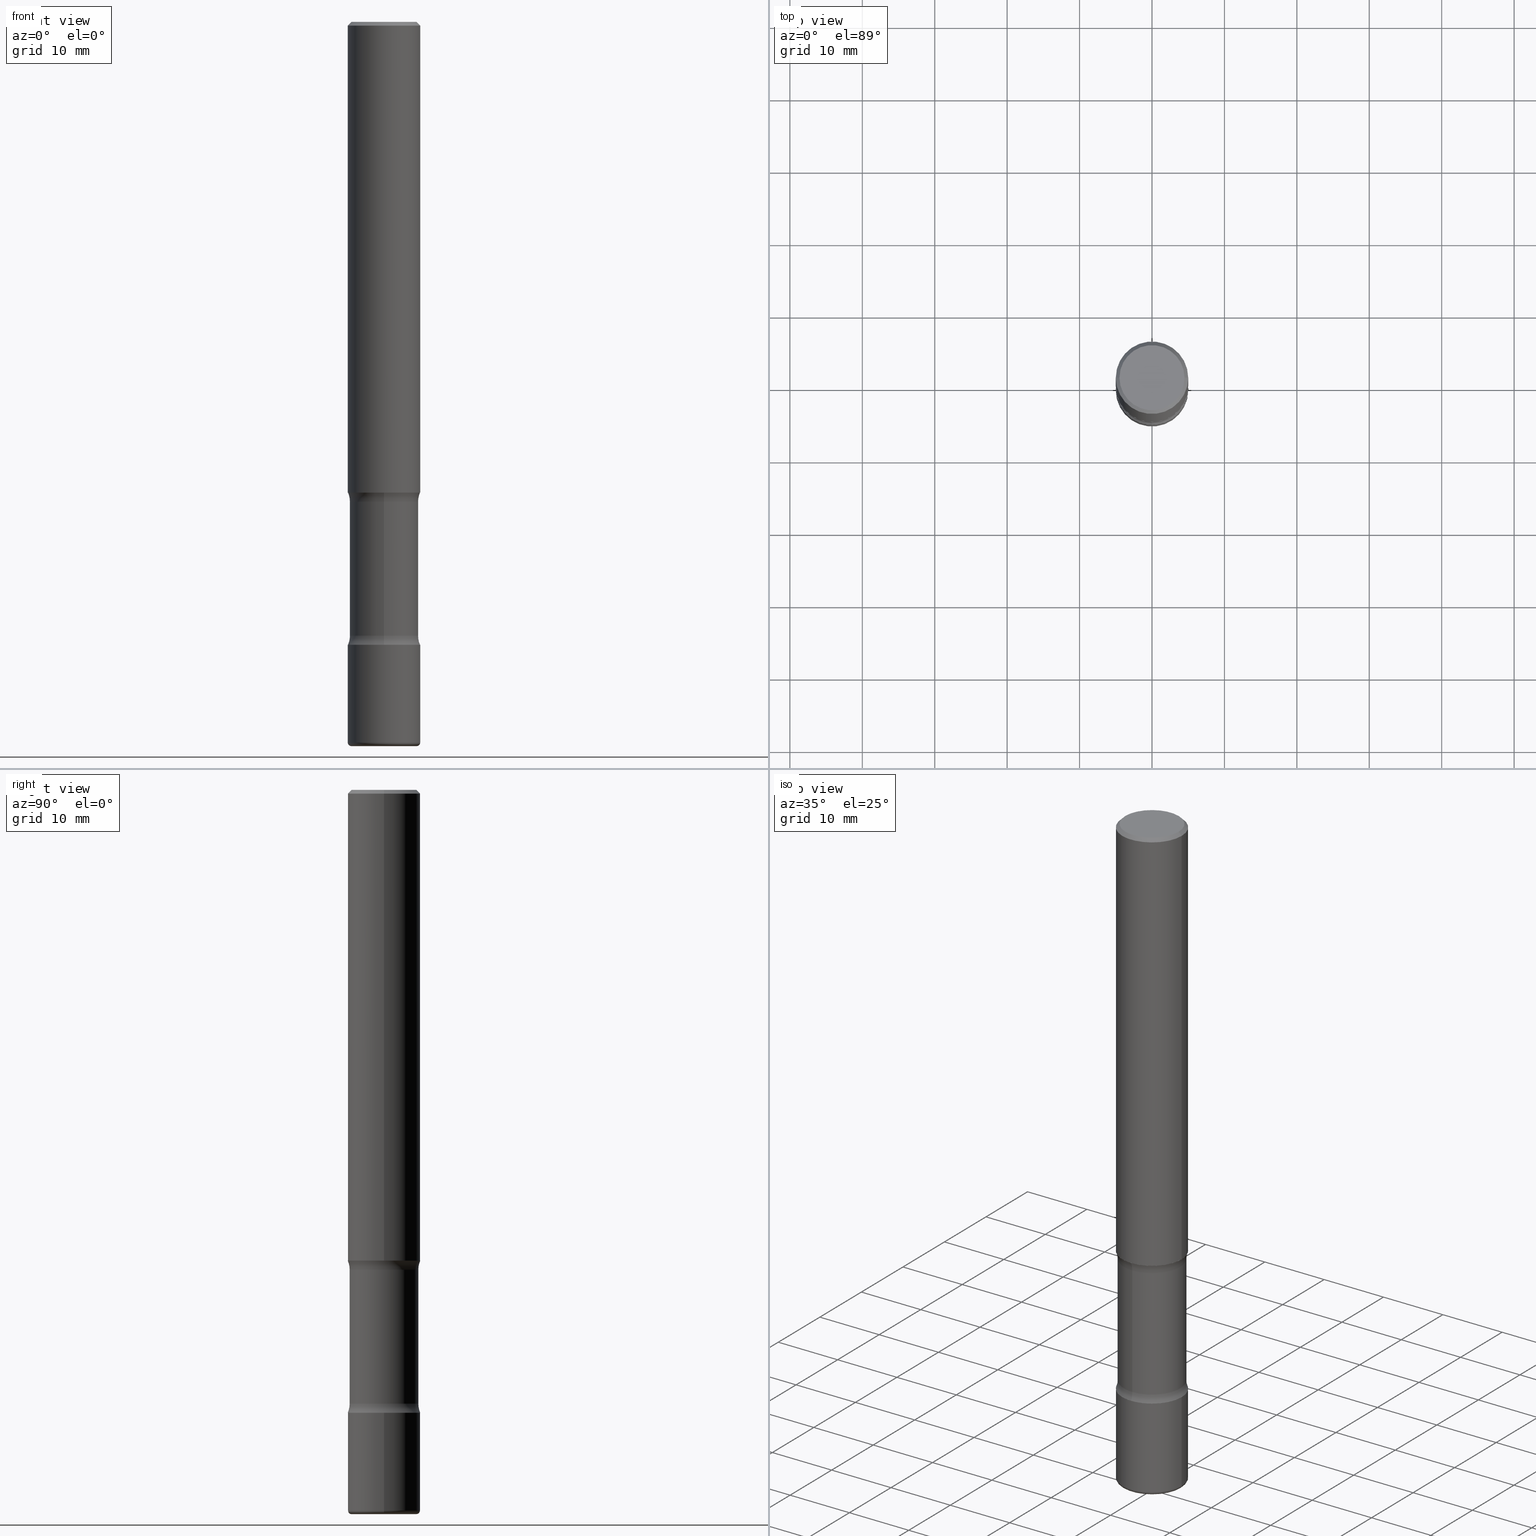
[diagram: canonical four-view strip — front | top / right | iso, engineering-drawing reading convention]
A machine part, canonical four-view strip (front | top / right | iso — engineering-drawing reading convention). The complete STEP part file that produces these views, byte-faithful:
ISO-10303-21;
HEADER;
FILE_DESCRIPTION (( 'STEP AP203' ),
    '1' );
FILE_NAME ('44778.STEP',
    '2024-03-02T03:09:33',
    ( '' ),
    ( '' ),
    'SwSTEP 2.0',
    'SolidWorks 2023',
    '' );
FILE_SCHEMA (( 'CONFIG_CONTROL_DESIGN' ));
ENDSEC;

DATA;
#1 = EDGE_CURVE ( 'NONE', #379, #120, #320, .T. ) ;
#2 = AXIS2_PLACEMENT_3D ( 'NONE', #82, #549, #143 ) ;
#3 = DIRECTION ( 'NONE',  ( -0.7071067811865466846, 2.468850131082247989E-15, -0.7071067811865483499 ) ) ;
#4 = EDGE_CURVE ( 'NONE', #239, #316, #139, .T. ) ;
#5 = CIRCLE ( 'NONE', #131, 0.1250000000000000278 ) ;
#6 = AXIS2_PLACEMENT_3D ( 'NONE', #242, #18, #179 ) ;
#7 = ADVANCED_FACE ( 'NONE', ( #218 ), #343, .T. ) ;
#8 = ORIENTED_EDGE ( 'NONE', *, *, #347, .T. ) ;
#9 = DIMENSIONAL_EXPONENTS ( 1.000000000000000000, 0.000000000000000000, 0.000000000000000000, 0.000000000000000000, 0.000000000000000000, 0.000000000000000000, 0.000000000000000000 ) ;
#10 = DIRECTION ( 'NONE',  ( -2.445468806185136597E-29, 3.491481338843145583E-15, 1.000000000000000000 ) ) ;
#11 = ADVANCED_FACE ( 'NONE', ( #455 ), #54, .F. ) ;
#12 = AXIS2_PLACEMENT_3D ( 'NONE', #107, #404, #533 ) ;
#13 = DIRECTION ( 'NONE',  ( 6.982962677686265922E-15, 1.000000000000000000, -3.282229987566573640E-15 ) ) ;
#14 = CARTESIAN_POINT ( 'NONE',  ( 9.627810689950883669E-29, -1.374596203102546341E-14, -3.937000000000000277 ) ) ;
#15 = UNCERTAINTY_MEASURE_WITH_UNIT (LENGTH_MEASURE( 1.000000000000000082E-05 ), #134, 'distance_accuracy_value', 'NONE');
#16 = CARTESIAN_POINT ( 'NONE',  ( -0.1968499999999998307, 1.304766576325677324E-15, -0.02000000000000006981 ) ) ;
#17 = CC_DESIGN_PERSON_AND_ORGANIZATION_ASSIGNMENT ( #182, #340, ( #141 ) ) ;
#18 = DIRECTION ( 'NONE',  ( -2.591588243807108060E-29, 3.282229987566573640E-15, 1.000000000000000000 ) ) ;
#19 = ORIENTED_EDGE ( 'NONE', *, *, #263, .T. ) ;
#20 = VERTEX_POINT ( 'NONE', #460 ) ;
#21 = CARTESIAN_POINT ( 'NONE',  ( 9.627810689950883669E-29, -1.374596203102546341E-14, -3.937000000000000277 ) ) ;
#22 = PLANE ( 'NONE',  #147 ) ;
#23 = VECTOR ( 'NONE', #281, 39.37007874015748143 ) ;
#24 = VERTEX_POINT ( 'NONE', #256 ) ;
#25 = TOROIDAL_SURFACE ( 'NONE', #432, 0.1771500000000001962, 0.01969999999999989468 ) ;
#26 = FACE_OUTER_BOUND ( 'NONE', #367, .T. ) ;
#27 = ORIENTED_EDGE ( 'NONE', *, *, #1, .T. ) ;
#28 = FACE_OUTER_BOUND ( 'NONE', #374, .T. ) ;
#29 = ORIENTED_EDGE ( 'NONE', *, *, #188, .T. ) ;
#30 = EDGE_LOOP ( 'NONE', ( #547, #495, #407, #245 ) ) ;
#31 = APPROVAL_ROLE ( '' ) ;
#32 = EDGE_CURVE ( 'NONE', #24, #126, #135, .T. ) ;
#33 = DIRECTION ( 'NONE',  ( 6.860497997771532351E-15, 1.000000000000000000, 0.000000000000000000 ) ) ;
#34 = DIRECTION ( 'NONE',  ( -2.445468806185136597E-29, 3.491481338843145583E-15, 1.000000000000000000 ) ) ;
#35 = CALENDAR_DATE ( 2024, 1, 3 ) ;
#36 = EDGE_LOOP ( 'NONE', ( #45, #150 ) ) ;
#37 = ORIENTED_EDGE ( 'NONE', *, *, #38, .F. ) ;
#38 = EDGE_CURVE ( 'NONE', #288, #517, #43, .T. ) ;
#39 = DIRECTION ( 'NONE',  ( 2.591588243807108620E-29, -3.282229987566573640E-15, -1.000000000000000000 ) ) ;
#40 =( NAMED_UNIT ( * ) SI_UNIT ( $, .STERADIAN. ) SOLID_ANGLE_UNIT ( ) );
#41 = AXIS2_PLACEMENT_3D ( 'NONE', #164, #314, #234 ) ;
#42 = DIRECTION ( 'NONE',  ( 1.000000000000000000, -6.982962677686266711E-15, 4.876176775795935793E-29 ) ) ;
#43 = LINE ( 'NONE', #175, #518 ) ;
#44 = PERSON_AND_ORGANIZATION ( #473, #237 ) ;
#45 = ORIENTED_EDGE ( 'NONE', *, *, #265, .F. ) ;
#46 = DIRECTION ( 'NONE',  ( 1.000000000000000000, -6.982962677686265922E-15, 4.883557194083112340E-29 ) ) ;
#47 = COORDINATED_UNIVERSAL_TIME_OFFSET ( 5, 0, .BEHIND. ) ;
#48 = CARTESIAN_POINT ( 'NONE',  ( 6.283517401289684484E-29, -9.243970108248332967E-15, -2.608456647682592333 ) ) ;
#49 = AXIS2_PLACEMENT_3D ( 'NONE', #349, #146, #486 ) ;
#50 = DIRECTION ( 'NONE',  ( -2.445468806185136597E-29, 3.491481338843145583E-15, 1.000000000000000000 ) ) ;
#51 = DIRECTION ( 'NONE',  ( 2.445468806185136597E-29, -3.491481338843145583E-15, -1.000000000000000000 ) ) ;
#52 = DIRECTION ( 'NONE',  ( 2.438088387897960049E-29, -3.491481338843145188E-15, -1.000000000000000000 ) ) ;
#53 = DIRECTION ( 'NONE',  ( -2.445468806185136597E-29, 3.491481338843145583E-15, 1.000000000000000000 ) ) ;
#54 = TOROIDAL_SURFACE ( 'NONE', #552, 0.3116500000000000936, 0.1250000000000000278 ) ;
#55 = CIRCLE ( 'NONE', #441, 0.01969999999999989468 ) ;
#56 = EDGE_CURVE ( 'NONE', #65, #446, #127, .T. ) ;
#57 = LOCAL_TIME ( 22, 9, 33.00000000000000000, #253 ) ;
#58 = FACE_OUTER_BOUND ( 'NONE', #405, .T. ) ;
#59 = DIRECTION ( 'NONE',  ( -2.445468806185136597E-29, 3.491481338843145583E-15, 1.000000000000000000 ) ) ;
#60 = EDGE_CURVE ( 'NONE', #24, #410, #276, .T. ) ;
#61 = TOROIDAL_SURFACE ( 'NONE', #217, 0.1771500000000001962, 0.01969999999999989468 ) ;
#62 = DIRECTION ( 'NONE',  ( -2.445468806185136597E-29, 3.491481338843145583E-15, 1.000000000000000000 ) ) ;
#63 = APPROVAL ( #222, 'UNSPECIFIED' ) ;
#64 = CARTESIAN_POINT ( 'NONE',  ( 6.137143124001919052E-29, -9.107709763335080543E-15, -2.559000000000000163 ) ) ;
#65 = VERTEX_POINT ( 'NONE', #94 ) ;
#66 = DIRECTION ( 'NONE',  ( 0.7071067811865466846, -7.319954787623252890E-15, -0.7071067811865483499 ) ) ;
#67 = DIRECTION ( 'NONE',  ( -6.982962677686266711E-15, -1.000000000000000000, 3.491481338843145583E-15 ) ) ;
#68 = DIRECTION ( 'NONE',  ( 2.591588243807108620E-29, -3.282229987566573640E-15, -1.000000000000000000 ) ) ;
#69 = ORIENTED_EDGE ( 'NONE', *, *, #92, .F. ) ;
#70 = ORIENTED_EDGE ( 'NONE', *, *, #228, .T. ) ;
#71 = ORIENTED_EDGE ( 'NONE', *, *, #354, .T. ) ;
#72 = CARTESIAN_POINT ( 'NONE',  ( 0.000000000000000000, 0.000000000000000000, 0.000000000000000000 ) ) ;
#73 = AXIS2_PLACEMENT_3D ( 'NONE', #303, #463, #33 ) ;
#74 = ORIENTED_EDGE ( 'NONE', *, *, #4, .F. ) ;
#75 = FACE_OUTER_BOUND ( 'NONE', #215, .T. ) ;
#76 = AXIS2_PLACEMENT_3D ( 'NONE', #64, #238, #406 ) ;
#77 = APPROVAL_DATE_TIME ( #423, #109 ) ;
#78 = LOCAL_TIME ( 22, 9, 33.00000000000000000, #171 ) ;
#79 = ADVANCED_FACE ( 'NONE', ( #382 ), #383, .F. ) ;
#80 = ORIENTED_EDGE ( 'NONE', *, *, #317, .T. ) ;
#81 = CALENDAR_DATE ( 2024, 1, 3 ) ;
#82 = CARTESIAN_POINT ( 'NONE',  ( 2.176240318500987949E-15, 0.3116499999999908788, -2.608456647682593665 ) ) ;
#83 = DIRECTION ( 'NONE',  ( 0.000000000000000000, 0.000000000000000000, 1.000000000000000000 ) ) ;
#84 = VERTEX_POINT ( 'NONE', #417 ) ;
#85 = PRODUCT_DEFINITION_SHAPE ( 'NONE', 'NONE',  #560 ) ;
#86 = CARTESIAN_POINT ( 'NONE',  ( -0.1968500000000001082, -3.103561811094476227E-15, -2.559000000000000163 ) ) ;
#87 = CARTESIAN_POINT ( 'NONE',  ( 0.000000000000000000, 0.000000000000000000, 0.000000000000000000 ) ) ;
#88 = DIRECTION ( 'NONE',  ( 1.000000000000000000, 0.000000000000000000, 0.000000000000000000 ) ) ;
#89 = AXIS2_PLACEMENT_3D ( 'NONE', #133, #386, #501 ) ;
#90 = TOROIDAL_SURFACE ( 'NONE', #116, 0.3116500000000000936, 0.1250000000000000278 ) ;
#91 = APPROVAL_PERSON_ORGANIZATION ( #449, #536, #31 ) ;
#92 = EDGE_CURVE ( 'NONE', #523, #517, #395, .T. ) ;
#93 = PERSON_AND_ORGANIZATION ( #473, #237 ) ;
#94 = CARTESIAN_POINT ( 'NONE',  ( 1.303369983790204808E-15, 0.1866499999999908233, -2.608456647682592777 ) ) ;
#95 = VECTOR ( 'NONE', #453, 39.37007874015748143 ) ;
#96 = DIRECTION ( 'NONE',  ( 1.000000000000000000, -6.982962677686266711E-15, 4.876176775795935793E-29 ) ) ;
#97 = AXIS2_PLACEMENT_3D ( 'NONE', #21, #401, #195 ) ;
#98 = LOCAL_TIME ( 22, 9, 33.00000000000000000, #294 ) ;
#99 = DIRECTION ( 'NONE',  ( 2.438088387897960049E-29, -3.491481338843145188E-15, -1.000000000000000000 ) ) ;
#100 = DIRECTION ( 'NONE',  ( -1.000000000000000000, 6.982962677686266711E-15, 0.000000000000000000 ) ) ;
#101 = DIRECTION ( 'NONE',  ( -6.982962677686265133E-15, -1.000000000000000000, 0.000000000000000000 ) ) ;
#102 = EDGE_CURVE ( 'NONE', #65, #120, #393, .T. ) ;
#103 = AXIS2_PLACEMENT_3D ( 'NONE', #170, #62, #482 ) ;
#104 = PLANE ( 'NONE',  #529 ) ;
#105 = EDGE_CURVE ( 'NONE', #517, #523, #152, .T. ) ;
#106 = ORIENTED_EDGE ( 'NONE', *, *, #317, .F. ) ;
#107 = CARTESIAN_POINT ( 'NONE',  ( 0.000000000000000000, 0.000000000000000000, 0.000000000000000000 ) ) ;
#108 = FACE_OUTER_BOUND ( 'NONE', #543, .T. ) ;
#109 = APPROVAL ( #136, 'UNSPECIFIED' ) ;
#110 = LINE ( 'NONE', #443, #431 ) ;
#111 = ORIENTED_EDGE ( 'NONE', *, *, #32, .T. ) ;
#112 = DIRECTION ( 'NONE',  ( 2.591588243807108060E-29, -3.282229987566573640E-15, -1.000000000000000000 ) ) ;
#113 = DIRECTION ( 'NONE',  ( 6.982962677686266711E-15, 1.000000000000000000, -2.927241354046893093E-15 ) ) ;
#114 = CARTESIAN_POINT ( 'NONE',  ( 9.627810689950883669E-29, -1.374596203102546341E-14, -3.937000000000000277 ) ) ;
#115 = VECTOR ( 'NONE', #469, 39.37007874015748143 ) ;
#116 = AXIS2_PLACEMENT_3D ( 'NONE', #48, #346, #434 ) ;
#117 = DIRECTION ( 'NONE',  ( 6.982962677686266711E-15, 1.000000000000000000, -2.927241354046892699E-15 ) ) ;
#118 = APPROVAL_PERSON_ORGANIZATION ( #492, #109, #558 ) ;
#119 = EDGE_CURVE ( 'NONE', #239, #194, #462, .T. ) ;
#120 = VERTEX_POINT ( 'NONE', #348 ) ;
#121 = CARTESIAN_POINT ( 'NONE',  ( 8.279868283981634472E-29, -1.182145751705512057E-14, -3.385799999999999699 ) ) ;
#122 = VERTEX_POINT ( 'NONE', #16 ) ;
#123 = EDGE_LOOP ( 'NONE', ( #74, #209 ) ) ;
#124 = EDGE_CURVE ( 'NONE', #527, #20, #269, .T. ) ;
#125 = DATE_TIME_ROLE ( 'classification_date' ) ;
#126 = VERTEX_POINT ( 'NONE', #358 ) ;
#127 = CIRCLE ( 'NONE', #2, 0.1250000000000000278 ) ;
#128 = CYLINDRICAL_SURFACE ( 'NONE', #255, 0.1866500000000000381 ) ;
#129 = AXIS2_PLACEMENT_3D ( 'NONE', #513, #296, #425 ) ;
#130 = ORIENTED_EDGE ( 'NONE', *, *, #302, .F. ) ;
#131 = AXIS2_PLACEMENT_3D ( 'NONE', #400, #266, #357 ) ;
#132 = PERSON_AND_ORGANIZATION ( #473, #237 ) ;
#133 = CARTESIAN_POINT ( 'NONE',  ( 6.257954675027765161E-29, -8.934700746099610252E-15, -2.559000000000000163 ) ) ;
#134 =( CONVERSION_BASED_UNIT ( 'INCH', #328 ) LENGTH_UNIT ( ) NAMED_UNIT ( #9 ) );
#135 = LINE ( 'NONE', #424, #95 ) ;
#136 = APPROVAL_STATUS ( 'not_yet_approved' ) ;
#137 = ADVANCED_FACE ( 'NONE', ( #477 ), #532, .T. ) ;
#138 = CARTESIAN_POINT ( 'NONE',  ( 9.708351723968114409E-29, -1.363062268620181866E-14, -3.937000000000000277 ) ) ;
#139 = CIRCLE ( 'NONE', #89, 0.1968500000000001082 ) ;
#140 = AXIS2_PLACEMENT_3D ( 'NONE', #437, #59, #199 ) ;
#141 = PRODUCT_DEFINITION_FORMATION_WITH_SPECIFIED_SOURCE ( 'ANY', '', #230, .NOT_KNOWN. ) ;
#142 = CARTESIAN_POINT ( 'NONE',  ( 4.890937612370289799E-31, -6.982962677686315028E-17, -0.02000000000000006981 ) ) ;
#143 = DIRECTION ( 'NONE',  ( -6.982962677686267499E-15, -1.000000000000000000, 0.000000000000000000 ) ) ;
#144 = APPLICATION_CONTEXT ( 'configuration controlled 3d designs of mechanical parts and assemblies' ) ;
#145 = DIRECTION ( 'NONE',  ( 1.000000000000000000, -6.982962677686265133E-15, 0.000000000000000000 ) ) ;
#146 = DIRECTION ( 'NONE',  ( -2.445468806185136597E-29, 3.491481338843145583E-15, 1.000000000000000000 ) ) ;
#147 = AXIS2_PLACEMENT_3D ( 'NONE', #274, #439, #261 ) ;
#148 = EDGE_CURVE ( 'NONE', #316, #239, #497, .T. ) ;
#149 = CARTESIAN_POINT ( 'NONE',  ( 0.000000000000000000, 0.000000000000000000, 0.000000000000000000 ) ) ;
#150 = ORIENTED_EDGE ( 'NONE', *, *, #124, .F. ) ;
#151 = ORIENTED_EDGE ( 'NONE', *, *, #102, .T. ) ;
#152 = CIRCLE ( 'NONE', #380, 0.1968500000000001082 ) ;
#153 = CIRCLE ( 'NONE', #140, 0.1968500000000001915 ) ;
#154 = ORIENTED_EDGE ( 'NONE', *, *, #494, .F. ) ;
#155 = CC_DESIGN_PERSON_AND_ORGANIZATION_ASSIGNMENT ( #507, #225, ( #230 ) ) ;
#156 = ORIENTED_EDGE ( 'NONE', *, *, #228, .F. ) ;
#157 = DIRECTION ( 'NONE',  ( -2.445468806185136597E-29, 3.491481338843145583E-15, 1.000000000000000000 ) ) ;
#158 = VERTEX_POINT ( 'NONE', #402 ) ;
#159 = DIRECTION ( 'NONE',  ( 1.000000000000000000, -6.982962677686272233E-15, 0.000000000000000000 ) ) ;
#160 = CIRCLE ( 'NONE', #458, 0.1968500000000001082 ) ;
#161 = EDGE_LOOP ( 'NONE', ( #37, #398, #537, #323 ) ) ;
#162 = ORIENTED_EDGE ( 'NONE', *, *, #509, .F. ) ;
#163 = ORIENTED_EDGE ( 'NONE', *, *, #246, .T. ) ;
#164 = CARTESIAN_POINT ( 'NONE',  ( 6.265314390714234203E-29, -9.270037855443396476E-15, -2.608456647682592333 ) ) ;
#165 = CARTESIAN_POINT ( 'NONE',  ( 0.000000000000000000, 0.000000000000000000, 0.000000000000000000 ) ) ;
#166 = ORIENTED_EDGE ( 'NONE', *, *, #119, .F. ) ;
#167 = DIRECTION ( 'NONE',  ( 6.982962677686265922E-15, 1.000000000000000000, -3.282229987566573640E-15 ) ) ;
#168 = APPLICATION_CONTEXT ( 'configuration controlled 3d designs of mechanical parts and assemblies' ) ;
#169 = EDGE_LOOP ( 'NONE', ( #162, #476, #304, #293 ) ) ;
#170 = CARTESIAN_POINT ( 'NONE',  ( -1.043851414335219820E-46, 1.490343170380447200E-32, 4.268512490100411279E-18 ) ) ;
#171 = COORDINATED_UNIVERSAL_TIME_OFFSET ( 5, 0, .BEHIND. ) ;
#172 = EDGE_LOOP ( 'NONE', ( #373, #111, #324, #205 ) ) ;
#173 = FACE_OUTER_BOUND ( 'NONE', #544, .T. ) ;
#174 = CIRCLE ( 'NONE', #231, 0.1771500000000001962 ) ;
#175 = CARTESIAN_POINT ( 'NONE',  ( -0.1968500000000001360, 1.398703375343758182E-15, -9.682923725166790684E-30 ) ) ;
#176 = AXIS2_PLACEMENT_3D ( 'NONE', #490, #213, #414 ) ;
#177 = DATE_AND_TIME ( #247, #78 ) ;
#178 = MANIFOLD_SOLID_BREP ( 'Body-Move/Copy2[4]', #207 ) ;
#179 = DIRECTION ( 'NONE',  ( -6.982962677686265922E-15, -1.000000000000000000, 3.282229987566573640E-15 ) ) ;
#180 = APPLICATION_PROTOCOL_DEFINITION ( 'international standard', 'config_control_design', 1994, #144 ) ;
#181 = CARTESIAN_POINT ( 'NONE',  ( 6.257954675027765161E-29, -8.934700746099610252E-15, -2.559000000000000163 ) ) ;
#182 = PERSON_AND_ORGANIZATION ( #473, #237 ) ;
#183 = CARTESIAN_POINT ( 'NONE',  ( -0.1768499999999998129, 1.269851762937246267E-15, 4.268512490091652920E-18 ) ) ;
#184 = CLOSED_SHELL ( 'NONE', ( #534, #337, #557, #457, #310, #267 ) ) ;
#185 = CIRCLE ( 'NONE', #313, 0.1968500000000001915 ) ;
#186 = EDGE_CURVE ( 'NONE', #20, #158, #299, .T. ) ;
#187 = CC_DESIGN_APPROVAL ( #63, ( #141 ) ) ;
#188 = EDGE_CURVE ( 'NONE', #158, #288, #153, .T. ) ;
#189 = ADVANCED_FACE ( 'NONE', ( #108 ), #22, .F. ) ;
#190 = DIRECTION ( 'NONE',  ( 6.982962677686265922E-15, 1.000000000000000000, -2.775563112689115117E-15 ) ) ;
#191 = ADVANCED_FACE ( 'NONE', ( #298 ), #226, .T. ) ;
#192 = AXIS2_PLACEMENT_3D ( 'NONE', #327, #240, #290 ) ;
#193 = CARTESIAN_POINT ( 'NONE',  ( 2.176240318501006882E-15, 0.3116499999999883808, -3.336343352317409305 ) ) ;
#194 = VERTEX_POINT ( 'NONE', #372 ) ;
#195 = DIRECTION ( 'NONE',  ( 1.000000000000000000, -6.982962677686265133E-15, 0.000000000000000000 ) ) ;
#196 = FACE_OUTER_BOUND ( 'NONE', #525, .T. ) ;
#197 = CIRCLE ( 'NONE', #129, 0.1968500000000002748 ) ;
#198 = APPROVAL_PERSON_ORGANIZATION ( #44, #63, #384 ) ;
#199 = DIRECTION ( 'NONE',  ( 1.000000000000000000, -6.982962677686272233E-15, 0.000000000000000000 ) ) ;
#200 = AXIS2_PLACEMENT_3D ( 'NONE', #14, #99, #220 ) ;
#201 = ORIENTED_EDGE ( 'NONE', *, *, #263, .F. ) ;
#202 = PLANE ( 'NONE',  #519 ) ;
#203 = CARTESIAN_POINT ( 'NONE',  ( 9.708351723968114409E-29, -1.363062268620181866E-14, -3.937000000000000277 ) ) ;
#204 = ORIENTED_EDGE ( 'NONE', *, *, #60, .F. ) ;
#205 = ORIENTED_EDGE ( 'NONE', *, *, #102, .F. ) ;
#206 = ORIENTED_EDGE ( 'NONE', *, *, #302, .T. ) ;
#207 = CLOSED_SHELL ( 'NONE', ( #7, #235, #364, #212, #478, #531, #11, #271 ) ) ;
#208 = AXIS2_PLACEMENT_3D ( 'NONE', #72, #464, #42 ) ;
#209 = ORIENTED_EDGE ( 'NONE', *, *, #148, .F. ) ;
#210 = CARTESIAN_POINT ( 'NONE',  ( 0.1968500000000001082, -1.030929694920215344E-14, -2.559000000000000163 ) ) ;
#211 = ORIENTED_EDGE ( 'NONE', *, *, #1, .F. ) ;
#212 = ADVANCED_FACE ( 'NONE', ( #541 ), #90, .F. ) ;
#213 = DIRECTION ( 'NONE',  ( 2.591588243807108620E-29, -3.282229987566573640E-15, -1.000000000000000000 ) ) ;
#214 = CARTESIAN_POINT ( 'NONE',  ( 8.279868283981634472E-29, -1.182145751705512057E-14, -3.385799999999999699 ) ) ;
#215 = EDGE_LOOP ( 'NONE', ( #130, #312, #442, #504 ) ) ;
#216 = DIRECTION ( 'NONE',  ( 6.982962677686266711E-15, 1.000000000000000000, -2.927241354046892304E-15 ) ) ;
#217 = AXIS2_PLACEMENT_3D ( 'NONE', #489, #526, #232 ) ;
#218 = FACE_OUTER_BOUND ( 'NONE', #172, .T. ) ;
#219 = CONICAL_SURFACE ( 'NONE', #459, 0.1968499999999998307, 0.7853981633974471688 ) ;
#220 = DIRECTION ( 'NONE',  ( -1.000000000000000000, 6.982962677686265922E-15, -4.876176775795935793E-29 ) ) ;
#221 = DIRECTION ( 'NONE',  ( -2.445468806185136877E-29, 3.491481338843145188E-15, 1.000000000000000000 ) ) ;
#222 = APPROVAL_STATUS ( 'not_yet_approved' ) ;
#223 = DIRECTION ( 'NONE',  ( 1.000000000000000000, -6.982962677686266711E-15, 4.876176775795935793E-29 ) ) ;
#224 = CARTESIAN_POINT ( 'NONE',  ( 8.158923594815368929E-29, -1.164878055458961151E-14, -3.336343352317407973 ) ) ;
#225 = PERSON_AND_ORGANIZATION_ROLE ( 'design_owner' ) ;
#226 = CYLINDRICAL_SURFACE ( 'NONE', #403, 0.1968499999999999694 ) ;
#227 = VECTOR ( 'NONE', #480, 39.37007874015748143 ) ;
#228 = EDGE_CURVE ( 'NONE', #379, #554, #451, .T. ) ;
#229 = CC_DESIGN_PERSON_AND_ORGANIZATION_ASSIGNMENT ( #456, #258, ( #560 ) ) ;
#230 = PRODUCT ( '44778', '44778', '', ( #338 ) ) ;
#231 = AXIS2_PLACEMENT_3D ( 'NONE', #114, #10, #356 ) ;
#232 = DIRECTION ( 'NONE',  ( 1.000000000000000000, -6.982962677686265922E-15, 4.883557194083112340E-29 ) ) ;
#233 =( LENGTH_UNIT ( ) NAMED_UNIT ( * ) SI_UNIT ( $, .METRE. ) );
#234 = DIRECTION ( 'NONE',  ( 6.982962677686266711E-15, 1.000000000000000000, -2.927241354046892304E-15 ) ) ;
#235 = ADVANCED_FACE ( 'NONE', ( #388 ), #243, .F. ) ;
#236 = TOROIDAL_SURFACE ( 'NONE', #370, 0.3116500000000000936, 0.1250000000000000278 ) ;
#237 = ORGANIZATION ( 'UNSPECIFIED', 'UNSPECIFIED', '' ) ;
#238 = DIRECTION ( 'NONE',  ( 2.591588243807108620E-29, -3.282229987566573640E-15, -1.000000000000000000 ) ) ;
#239 = VERTEX_POINT ( 'NONE', #210 ) ;
#240 = DIRECTION ( 'NONE',  ( 2.591588243807108620E-29, -3.282229987566573640E-15, -1.000000000000000000 ) ) ;
#241 = CC_DESIGN_DATE_AND_TIME_ASSIGNMENT ( #387, #125, ( #321 ) ) ;
#242 = CARTESIAN_POINT ( 'NONE',  ( 8.279868283981634472E-29, -1.182145751705512057E-14, -3.385799999999999699 ) ) ;
#243 = TOROIDAL_SURFACE ( 'NONE', #396, 0.3116500000000000936, 0.1250000000000000278 ) ;
#244 = CIRCLE ( 'NONE', #345, 0.1768499999999998129 ) ;
#245 = ORIENTED_EDGE ( 'NONE', *, *, #306, .F. ) ;
#246 = EDGE_CURVE ( 'NONE', #286, #84, #381, .T. ) ;
#247 = CALENDAR_DATE ( 2024, 1, 3 ) ;
#248 = ORIENTED_EDGE ( 'NONE', *, *, #515, .T. ) ;
#249 = DIRECTION ( 'NONE',  ( 1.000000000000000000, -6.982962677686265922E-15, 4.876176775795935793E-29 ) ) ;
#250 = EDGE_CURVE ( 'NONE', #158, #523, #550, .T. ) ;
#251 = CARTESIAN_POINT ( 'NONE',  ( 8.151697017269320442E-29, -1.165912942494680306E-14, -3.336343352317407973 ) ) ;
#252 = DIRECTION ( 'NONE',  ( 2.591588243807108620E-29, -3.282229987566573640E-15, -1.000000000000000000 ) ) ;
#253 = COORDINATED_UNIVERSAL_TIME_OFFSET ( 5, 0, .BEHIND. ) ;
#254 = ORIENTED_EDGE ( 'NONE', *, *, #188, .F. ) ;
#255 = AXIS2_PLACEMENT_3D ( 'NONE', #203, #68, #117 ) ;
#256 = CARTESIAN_POINT ( 'NONE',  ( -1.315500491072630234E-15, -0.1866500000000093362, -2.608456647682591889 ) ) ;
#257 = LOCAL_TIME ( 22, 9, 33.00000000000000000, #419 ) ;
#258 = PERSON_AND_ORGANIZATION_ROLE ( 'creator' ) ;
#259 = EDGE_CURVE ( 'NONE', #84, #194, #110, .T. ) ;
#260 = CARTESIAN_POINT ( 'NONE',  ( 0.1968500000000001082, -1.319605372015766376E-14, -3.385799999999999699 ) ) ;
#261 = DIRECTION ( 'NONE',  ( -1.000000000000000000, 6.982962677686265922E-15, -4.876176775795935793E-29 ) ) ;
#262 = DIRECTION ( 'NONE',  ( -2.438088387897960049E-29, 3.491481338843145188E-15, 1.000000000000000000 ) ) ;
#263 = EDGE_CURVE ( 'NONE', #554, #379, #160, .T. ) ;
#264 = AXIS2_PLACEMENT_3D ( 'NONE', #251, #421, #113 ) ;
#265 = EDGE_CURVE ( 'NONE', #20, #527, #174, .T. ) ;
#266 = DIRECTION ( 'NONE',  ( 1.000000000000000000, -6.860497997771530774E-15, 4.843361469599724329E-29 ) ) ;
#267 = ADVANCED_FACE ( 'NONE', ( #311 ), #104, .F. ) ;
#268 = AXIS2_PLACEMENT_3D ( 'NONE', #214, #53, #145 ) ;
#269 = CIRCLE ( 'NONE', #97, 0.1771500000000001962 ) ;
#270 = CC_DESIGN_APPROVAL ( #536, ( #321 ) ) ;
#271 = ADVANCED_FACE ( 'NONE', ( #26 ), #128, .T. ) ;
#272 = ORIENTED_EDGE ( 'NONE', *, *, #38, .T. ) ;
#273 = EDGE_CURVE ( 'NONE', #286, #122, #390, .T. ) ;
#274 = CARTESIAN_POINT ( 'NONE',  ( 1.234936949548814815E-15, 0.1768499999999998129, -6.153342185293594620E-16 ) ) ;
#275 = ORIENTED_EDGE ( 'NONE', *, *, #392, .F. ) ;
#276 = CIRCLE ( 'NONE', #73, 0.1250000000000000278 ) ;
#277 = CIRCLE ( 'NONE', #41, 0.1866500000000000659 ) ;
#278 = AXIS2_PLACEMENT_3D ( 'NONE', #149, #465, #96 ) ;
#279 = DIRECTION ( 'NONE',  ( 1.000000000000000000, -6.982962677686266711E-15, 4.875932113059883053E-29 ) ) ;
#280 = CARTESIAN_POINT ( 'NONE',  ( 1.374596203102604520E-15, 0.1968499999999911709, -2.559000000000000608 ) ) ;
#281 = DIRECTION ( 'NONE',  ( 2.591588243807108620E-29, -3.282229987566573640E-15, -1.000000000000000000 ) ) ;
#282 = EDGE_LOOP ( 'NONE', ( #275, #375, #481, #540 ) ) ;
#283 = CC_DESIGN_PERSON_AND_ORGANIZATION_ASSIGNMENT ( #132, #508, ( #141 ) ) ;
#284 = ORIENTED_EDGE ( 'NONE', *, *, #105, .T. ) ;
#285 = CARTESIAN_POINT ( 'NONE',  ( 0.1771500000000001962, -1.491421168700237936E-14, -3.917300000000000448 ) ) ;
#286 = VERTEX_POINT ( 'NONE', #183 ) ;
#287 = DIRECTION ( 'NONE',  ( 1.000000000000000000, -6.982962677686266711E-15, 0.000000000000000000 ) ) ;
#288 = VERTEX_POINT ( 'NONE', #341 ) ;
#289 = DATE_AND_TIME ( #81, #257 ) ;
#290 = DIRECTION ( 'NONE',  ( 6.982962677686265922E-15, 1.000000000000000000, -2.775563112689115117E-15 ) ) ;
#291 = EDGE_LOOP ( 'NONE', ( #204, #154, #493, #71 ) ) ;
#292 = CIRCLE ( 'NONE', #483, 0.1968499999999998307 ) ;
#293 = ORIENTED_EDGE ( 'NONE', *, *, #273, .F. ) ;
#294 = COORDINATED_UNIVERSAL_TIME_OFFSET ( 5, 0, .BEHIND. ) ;
#295 = DIRECTION ( 'NONE',  ( 1.000000000000000000, -6.982962677686266711E-15, 0.000000000000000000 ) ) ;
#296 = DIRECTION ( 'NONE',  ( 2.591588243807108620E-29, -3.282229987566573640E-15, -1.000000000000000000 ) ) ;
#297 =( NAMED_UNIT ( * ) PLANE_ANGLE_UNIT ( ) SI_UNIT ( $, .RADIAN. ) );
#298 = FACE_OUTER_BOUND ( 'NONE', #282, .T. ) ;
#299 = CIRCLE ( 'NONE', #466, 0.01969999999999989468 ) ;
#300 = DIRECTION ( 'NONE',  ( 6.982962677686266711E-15, 1.000000000000000000, -2.927241354046892699E-15 ) ) ;
#301 = EDGE_CURVE ( 'NONE', #122, #194, #292, .T. ) ;
#302 = EDGE_CURVE ( 'NONE', #24, #65, #352, .T. ) ;
#303 = CARTESIAN_POINT ( 'NONE',  ( -2.138074201005435255E-15, -0.3116500000000093085, -2.608456647682591445 ) ) ;
#304 = ORIENTED_EDGE ( 'NONE', *, *, #445, .T. ) ;
#305 = CARTESIAN_POINT ( 'NONE',  ( 0.1968499999999999694, -1.374596203102541411E-15, 9.598753983154298056E-30 ) ) ;
#306 = EDGE_CURVE ( 'NONE', #288, #158, #185, .T. ) ;
#307 = AXIS2_PLACEMENT_3D ( 'NONE', #399, #50, #394 ) ;
#308 = CIRCLE ( 'NONE', #176, 0.1866500000000000103 ) ;
#309 = ORIENTED_EDGE ( 'NONE', *, *, #246, .F. ) ;
#310 = ADVANCED_FACE ( 'NONE', ( #485 ), #409, .T. ) ;
#311 = FACE_OUTER_BOUND ( 'NONE', #319, .T. ) ;
#312 = ORIENTED_EDGE ( 'NONE', *, *, #60, .T. ) ;
#313 = AXIS2_PLACEMENT_3D ( 'NONE', #325, #503, #159 ) ;
#314 = DIRECTION ( 'NONE',  ( 2.591588243807108620E-29, -3.282229987566573640E-15, -1.000000000000000000 ) ) ;
#315 = CARTESIAN_POINT ( 'NONE',  ( 0.1968500000000001360, -1.374596203102542594E-15, 9.598753983154306463E-30 ) ) ;
#316 = VERTEX_POINT ( 'NONE', #86 ) ;
#317 = EDGE_CURVE ( 'NONE', #126, #120, #362, .T. ) ;
#318 = DIRECTION ( 'NONE',  ( 6.982962677686265922E-15, 1.000000000000000000, -3.282229987566573640E-15 ) ) ;
#319 = EDGE_LOOP ( 'NONE', ( #487, #284 ) ) ;
#320 = CIRCLE ( 'NONE', #360, 0.1250000000000000278 ) ;
#321 = SECURITY_CLASSIFICATION ( '', '', #461 ) ;
#322 = FACE_OUTER_BOUND ( 'NONE', #169, .T. ) ;
#323 = ORIENTED_EDGE ( 'NONE', *, *, #105, .F. ) ;
#324 = ORIENTED_EDGE ( 'NONE', *, *, #515, .F. ) ;
#325 = CARTESIAN_POINT ( 'NONE',  ( 9.579634954469036932E-29, -1.367717984865025539E-14, -3.917300000000000448 ) ) ;
#326 = EDGE_CURVE ( 'NONE', #554, #126, #5, .T. ) ;
#327 = CARTESIAN_POINT ( 'NONE',  ( 8.279868283981634472E-29, -1.182145751705512057E-14, -3.385799999999999699 ) ) ;
#328 = LENGTH_MEASURE_WITH_UNIT ( LENGTH_MEASURE( 0.02539999999999999897 ), #233 );
#329 = ORIENTED_EDGE ( 'NONE', *, *, #326, .F. ) ;
#330 = CARTESIAN_POINT ( 'NONE',  ( 4.890937612370289799E-31, -6.982962677686315028E-17, -0.02000000000000006981 ) ) ;
#331 = ORIENTED_EDGE ( 'NONE', *, *, #354, .F. ) ;
#332 = DATE_TIME_ROLE ( 'creation_date' ) ;
#333 = DIRECTION ( 'NONE',  ( -1.000000000000000000, 6.982962677686266711E-15, 0.000000000000000000 ) ) ;
#334 = CONICAL_SURFACE ( 'NONE', #391, 0.1968499999999998307, 0.7853981633974471688 ) ;
#335 = DIRECTION ( 'NONE',  ( -1.000000000000000000, 7.105427357600965571E-15, 0.000000000000000000 ) ) ;
#336 = APPROVAL_DATE_TIME ( #551, #536 ) ;
#337 = ADVANCED_FACE ( 'NONE', ( #58 ), #25, .T. ) ;
#338 = MECHANICAL_CONTEXT ( 'NONE', #144, 'mechanical' ) ;
#339 = DIRECTION ( 'NONE',  ( 2.445468806185136597E-29, -3.491481338843145583E-15, -1.000000000000000000 ) ) ;
#340 = PERSON_AND_ORGANIZATION_ROLE ( 'creator' ) ;
#341 = CARTESIAN_POINT ( 'NONE',  ( -0.1968500000000001082, -1.227847647330649839E-14, -3.917300000000000448 ) ) ;
#342 = CIRCLE ( 'NONE', #76, 0.1968500000000002748 ) ;
#343 = CYLINDRICAL_SURFACE ( 'NONE', #430, 0.1866500000000000381 ) ;
#344 = CARTESIAN_POINT ( 'NONE',  ( 9.579634954469036932E-29, -1.367717984865025539E-14, -3.917300000000000448 ) ) ;
#345 = AXIS2_PLACEMENT_3D ( 'NONE', #440, #157, #279 ) ;
#346 = DIRECTION ( 'NONE',  ( 2.591588243807108620E-29, -3.282229987566573640E-15, -1.000000000000000000 ) ) ;
#347 = EDGE_CURVE ( 'NONE', #527, #288, #55, .T. ) ;
#348 = CARTESIAN_POINT ( 'NONE',  ( 1.303369983790223149E-15, 0.1866499999999883530, -3.336343352317408861 ) ) ;
#349 = CARTESIAN_POINT ( 'NONE',  ( 6.257954675027765161E-29, -8.934700746099610252E-15, -2.559000000000000163 ) ) ;
#350 = MANIFOLD_SOLID_BREP ( 'Body-Move/Copy2[2]', #351 ) ;
#351 = CLOSED_SHELL ( 'NONE', ( #137, #415, #516, #189, #79, #191 ) ) ;
#352 = CIRCLE ( 'NONE', #539, 0.1866500000000000659 ) ;
#353 =( GEOMETRIC_REPRESENTATION_CONTEXT ( 3 ) GLOBAL_UNCERTAINTY_ASSIGNED_CONTEXT ( ( #15 ) ) GLOBAL_UNIT_ASSIGNED_CONTEXT ( ( #134, #297, #40 ) ) REPRESENTATION_CONTEXT ( 'NONE', 'WORKASPACE' ) );
#354 = EDGE_CURVE ( 'NONE', #446, #410, #197, .T. ) ;
#355 = DIRECTION ( 'NONE',  ( -1.000000000000000000, 6.982962677686265922E-15, -4.883557194083112340E-29 ) ) ;
#356 = DIRECTION ( 'NONE',  ( 1.000000000000000000, -6.982962677686265133E-15, 0.000000000000000000 ) ) ;
#357 = DIRECTION ( 'NONE',  ( 6.860497997771529985E-15, 1.000000000000000000, 0.000000000000000000 ) ) ;
#358 = CARTESIAN_POINT ( 'NONE',  ( -1.315500491072608935E-15, -0.1866500000000116399, -3.336343352317407529 ) ) ;
#359 = CARTESIAN_POINT ( 'NONE',  ( 1.374596203102624439E-15, 0.1968499999999882288, -3.385800000000000143 ) ) ;
#360 = AXIS2_PLACEMENT_3D ( 'NONE', #193, #355, #101 ) ;
#361 = FACE_OUTER_BOUND ( 'NONE', #36, .T. ) ;
#362 = CIRCLE ( 'NONE', #264, 0.1866500000000000103 ) ;
#363 = CC_DESIGN_APPROVAL ( #109, ( #560 ) ) ;
#364 = ADVANCED_FACE ( 'NONE', ( #75 ), #236, .F. ) ;
#365 = CC_DESIGN_DATE_AND_TIME_ASSIGNMENT ( #177, #332, ( #560 ) ) ;
#366 = DESIGN_CONTEXT ( 'detailed design', #168, 'design' ) ;
#367 = EDGE_LOOP ( 'NONE', ( #420, #206, #151, #106 ) ) ;
#368 = EDGE_CURVE ( 'NONE', #410, #446, #342, .T. ) ;
#369 = CARTESIAN_POINT ( 'NONE',  ( -1.350489030861243387E-15, -0.1968500000000119043, -3.385799999999999255 ) ) ;
#370 = AXIS2_PLACEMENT_3D ( 'NONE', #429, #252, #167 ) ;
#371 = CARTESIAN_POINT ( 'NONE',  ( -0.1968499999999999694, 1.398703375343756999E-15, -9.682923725166782276E-30 ) ) ;
#372 = CARTESIAN_POINT ( 'NONE',  ( 0.1968499999999998307, -1.420318657638187938E-15, -0.02000000000000006981 ) ) ;
#373 = ORIENTED_EDGE ( 'NONE', *, *, #494, .T. ) ;
#374 = EDGE_LOOP ( 'NONE', ( #521, #309, #520, #470 ) ) ;
#375 = ORIENTED_EDGE ( 'NONE', *, *, #148, .T. ) ;
#376 = CARTESIAN_POINT ( 'NONE',  ( -1.350489030861266264E-15, -0.1968500000000093231, -2.558999999999999719 ) ) ;
#377 = DIRECTION ( 'NONE',  ( 7.105427357601001859E-15, 1.000000000000000000, -3.491481338843145583E-15 ) ) ;
#378 = CALENDAR_DATE ( 2024, 1, 3 ) ;
#379 = VERTEX_POINT ( 'NONE', #359 ) ;
#380 = AXIS2_PLACEMENT_3D ( 'NONE', #553, #542, #479 ) ;
#381 = CIRCLE ( 'NONE', #103, 0.1768499999999998129 ) ;
#382 = FACE_OUTER_BOUND ( 'NONE', #123, .T. ) ;
#383 = PLANE ( 'NONE',  #510 ) ;
#384 = APPROVAL_ROLE ( '' ) ;
#385 = PLANE ( 'NONE',  #6 ) ;
#386 = DIRECTION ( 'NONE',  ( -2.445468806185136597E-29, 3.491481338843145583E-15, 1.000000000000000000 ) ) ;
#387 = DATE_AND_TIME ( #35, #499 ) ;
#388 = FACE_OUTER_BOUND ( 'NONE', #450, .T. ) ;
#389 = CARTESIAN_POINT ( 'NONE',  ( -0.1771500000000001962, -1.238285602396647324E-14, -3.937000000000000277 ) ) ;
#390 = LINE ( 'NONE', #556, #436 ) ;
#391 = AXIS2_PLACEMENT_3D ( 'NONE', #505, #51, #100 ) ;
#392 = EDGE_CURVE ( 'NONE', #316, #122, #528, .T. ) ;
#393 = LINE ( 'NONE', #468, #23 ) ;
#394 = DIRECTION ( 'NONE',  ( 1.000000000000000000, -6.982962677686266711E-15, 0.000000000000000000 ) ) ;
#395 = CIRCLE ( 'NONE', #268, 0.1968500000000001082 ) ;
#396 = AXIS2_PLACEMENT_3D ( 'NONE', #418, #491, #318 ) ;
#397 = CC_DESIGN_SECURITY_CLASSIFICATION ( #321, ( #141 ) ) ;
#398 = ORIENTED_EDGE ( 'NONE', *, *, #306, .T. ) ;
#399 = CARTESIAN_POINT ( 'NONE',  ( 4.890937612370289799E-31, -6.982962677686315028E-17, -0.02000000000000006981 ) ) ;
#400 = CARTESIAN_POINT ( 'NONE',  ( -2.138074201005416717E-15, -0.3116500000000117510, -3.336343352317407085 ) ) ;
#401 = DIRECTION ( 'NONE',  ( -2.445468806185136597E-29, 3.491481338843145583E-15, 1.000000000000000000 ) ) ;
#402 = CARTESIAN_POINT ( 'NONE',  ( 0.1968500000000001082, -1.505177605175279857E-14, -3.917300000000000448 ) ) ;
#403 = AXIS2_PLACEMENT_3D ( 'NONE', #87, #500, #223 ) ;
#404 = DIRECTION ( 'NONE',  ( -2.445468806185136597E-29, 3.491481338843145583E-15, 1.000000000000000000 ) ) ;
#405 = EDGE_LOOP ( 'NONE', ( #488, #8, #254, #412 ) ) ;
#406 = DIRECTION ( 'NONE',  ( 6.982962677686265922E-15, 1.000000000000000000, -2.775563112689112751E-15 ) ) ;
#407 = ORIENTED_EDGE ( 'NONE', *, *, #186, .T. ) ;
#408 = ORIENTED_EDGE ( 'NONE', *, *, #4, .T. ) ;
#409 = CYLINDRICAL_SURFACE ( 'NONE', #208, 0.1968500000000001360 ) ;
#410 = VERTEX_POINT ( 'NONE', #376 ) ;
#411 = ADVANCED_BREP_SHAPE_REPRESENTATION ( '44778', ( #535, #350, #178, #498 ), #353 ) ;
#412 = ORIENTED_EDGE ( 'NONE', *, *, #186, .F. ) ;
#413 = ORIENTED_EDGE ( 'NONE', *, *, #368, .F. ) ;
#414 = DIRECTION ( 'NONE',  ( 6.982962677686266711E-15, 1.000000000000000000, -2.927241354046893093E-15 ) ) ;
#415 = ADVANCED_FACE ( 'NONE', ( #322 ), #334, .T. ) ;
#416 = APPROVAL_STATUS ( 'not_yet_approved' ) ;
#417 = CARTESIAN_POINT ( 'NONE',  ( 0.1768499999999998129, -1.316798864272041155E-15, 4.268512490109333727E-18 ) ) ;
#418 = CARTESIAN_POINT ( 'NONE',  ( 8.158923594815368929E-29, -1.164878055458961151E-14, -3.336343352317407973 ) ) ;
#419 = COORDINATED_UNIVERSAL_TIME_OFFSET ( 5, 0, .BEHIND. ) ;
#420 = ORIENTED_EDGE ( 'NONE', *, *, #32, .F. ) ;
#421 = DIRECTION ( 'NONE',  ( 2.591588243807108620E-29, -3.282229987566573640E-15, -1.000000000000000000 ) ) ;
#422 = CARTESIAN_POINT ( 'NONE',  ( 6.265314390714234203E-29, -9.270037855443396476E-15, -2.608456647682592333 ) ) ;
#423 = DATE_AND_TIME ( #546, #57 ) ;
#424 = CARTESIAN_POINT ( 'NONE',  ( -1.280511951283959495E-15, -0.1866500000000136661, -3.936999999999999389 ) ) ;
#425 = DIRECTION ( 'NONE',  ( 6.982962677686265922E-15, 1.000000000000000000, -2.775563112689112751E-15 ) ) ;
#426 = DIRECTION ( 'NONE',  ( 2.591588243807108620E-29, -3.282229987566573640E-15, -1.000000000000000000 ) ) ;
#427 = PERSON_AND_ORGANIZATION_ROLE ( 'classification_officer' ) ;
#428 = SHAPE_DEFINITION_REPRESENTATION ( #85, #411 ) ;
#429 = CARTESIAN_POINT ( 'NONE',  ( 6.283517401289684484E-29, -9.243970108248332967E-15, -2.608456647682592333 ) ) ;
#430 = AXIS2_PLACEMENT_3D ( 'NONE', #138, #426, #300 ) ;
#431 = VECTOR ( 'NONE', #66, 39.37007874015748143 ) ;
#432 = AXIS2_PLACEMENT_3D ( 'NONE', #344, #34, #46 ) ;
#433 = DIRECTION ( 'NONE',  ( 2.591588243807108620E-29, -3.282229987566573640E-15, -1.000000000000000000 ) ) ;
#434 = DIRECTION ( 'NONE',  ( 6.982962677686265922E-15, 1.000000000000000000, -3.282229987566573640E-15 ) ) ;
#435 = PRODUCT_RELATED_PRODUCT_CATEGORY ( 'detail', '', ( #230 ) ) ;
#436 = VECTOR ( 'NONE', #3, 39.37007874015748143 ) ;
#437 = CARTESIAN_POINT ( 'NONE',  ( 9.579634954469036932E-29, -1.367717984865025539E-14, -3.917300000000000448 ) ) ;
#438 = CARTESIAN_POINT ( 'NONE',  ( 6.257954675027765161E-29, -8.934700746099610252E-15, -2.559000000000000163 ) ) ;
#439 = DIRECTION ( 'NONE',  ( 2.438088387897960049E-29, -3.491481338843145188E-15, -1.000000000000000000 ) ) ;
#440 = CARTESIAN_POINT ( 'NONE',  ( -1.043851414335219820E-46, 1.490343170380447200E-32, 4.268512490100411279E-18 ) ) ;
#441 = AXIS2_PLACEMENT_3D ( 'NONE', #538, #377, #335 ) ;
#442 = ORIENTED_EDGE ( 'NONE', *, *, #368, .T. ) ;
#443 = CARTESIAN_POINT ( 'NONE',  ( 0.1968499999999998307, -1.420318657638187938E-15, -0.02000000000000006981 ) ) ;
#444 = ORIENTED_EDGE ( 'NONE', *, *, #445, .F. ) ;
#445 = EDGE_CURVE ( 'NONE', #194, #122, #474, .T. ) ;
#446 = VERTEX_POINT ( 'NONE', #280 ) ;
#447 = DIRECTION ( 'NONE',  ( -1.000000000000000000, 6.982962677686265922E-15, -4.876176775795935793E-29 ) ) ;
#448 = CC_DESIGN_PERSON_AND_ORGANIZATION_ASSIGNMENT ( #93, #427, ( #321 ) ) ;
#449 = PERSON_AND_ORGANIZATION ( #473, #237 ) ;
#450 = EDGE_LOOP ( 'NONE', ( #201, #452, #80, #211 ) ) ;
#451 = CIRCLE ( 'NONE', #192, 0.1968500000000001082 ) ;
#452 = ORIENTED_EDGE ( 'NONE', *, *, #326, .T. ) ;
#453 = DIRECTION ( 'NONE',  ( 2.591588243807108620E-29, -3.282229987566573640E-15, -1.000000000000000000 ) ) ;
#454 = APPLICATION_PROTOCOL_DEFINITION ( 'international standard', 'config_control_design', 1994, #168 ) ;
#455 = FACE_OUTER_BOUND ( 'NONE', #559, .T. ) ;
#456 = PERSON_AND_ORGANIZATION ( #473, #237 ) ;
#457 = ADVANCED_FACE ( 'NONE', ( #524 ), #61, .T. ) ;
#458 = AXIS2_PLACEMENT_3D ( 'NONE', #121, #433, #190 ) ;
#459 = AXIS2_PLACEMENT_3D ( 'NONE', #142, #339, #333 ) ;
#460 = CARTESIAN_POINT ( 'NONE',  ( 0.1771500000000001962, -1.498299386937758739E-14, -3.937000000000000277 ) ) ;
#461 = SECURITY_CLASSIFICATION_LEVEL ( 'unclassified' ) ;
#462 = LINE ( 'NONE', #305, #115 ) ;
#463 = DIRECTION ( 'NONE',  ( 1.000000000000000000, -6.860497997771530774E-15, 4.843361469599724329E-29 ) ) ;
#464 = DIRECTION ( 'NONE',  ( -2.445468806185136597E-29, 3.491481338843145583E-15, 1.000000000000000000 ) ) ;
#465 = DIRECTION ( 'NONE',  ( -2.445468806185136597E-29, 3.491481338843145583E-15, 1.000000000000000000 ) ) ;
#466 = AXIS2_PLACEMENT_3D ( 'NONE', #285, #67, #287 ) ;
#467 = CARTESIAN_POINT ( 'NONE',  ( 8.279868283981634472E-29, -1.182145751705512057E-14, -3.385799999999999699 ) ) ;
#468 = CARTESIAN_POINT ( 'NONE',  ( 1.303369983790238926E-15, 0.1866499999999864101, -3.937000000000000721 ) ) ;
#469 = DIRECTION ( 'NONE',  ( -2.445468806185136877E-29, 3.491481338843145188E-15, 1.000000000000000000 ) ) ;
#470 = ORIENTED_EDGE ( 'NONE', *, *, #301, .T. ) ;
#471 = ORIENTED_EDGE ( 'NONE', *, *, #392, .T. ) ;
#472 = DIRECTION ( 'NONE',  ( -2.445468806185136877E-29, 3.491481338843145188E-15, 1.000000000000000000 ) ) ;
#473 = PERSON ( 'UNSPECIFIED', 'UNSPECIFIED', 'UNSPECIFIED', ('UNSPECIFIED'), ('UNSPECIFIED'), ('UNSPECIFIED') ) ;
#474 = CIRCLE ( 'NONE', #307, 0.1968499999999998307 ) ;
#475 = PLANE ( 'NONE',  #200 ) ;
#476 = ORIENTED_EDGE ( 'NONE', *, *, #259, .T. ) ;
#477 = FACE_OUTER_BOUND ( 'NONE', #484, .T. ) ;
#478 = ADVANCED_FACE ( 'NONE', ( #196 ), #202, .F. ) ;
#479 = DIRECTION ( 'NONE',  ( 1.000000000000000000, -6.982962677686265133E-15, 0.000000000000000000 ) ) ;
#480 = DIRECTION ( 'NONE',  ( -2.445468806185136877E-29, 3.491481338843145188E-15, 1.000000000000000000 ) ) ;
#481 = ORIENTED_EDGE ( 'NONE', *, *, #119, .T. ) ;
#482 = DIRECTION ( 'NONE',  ( 1.000000000000000000, -6.982962677686266711E-15, 4.875932113059883053E-29 ) ) ;
#483 = AXIS2_PLACEMENT_3D ( 'NONE', #330, #548, #295 ) ;
#484 = EDGE_LOOP ( 'NONE', ( #408, #471, #444, #166 ) ) ;
#485 = FACE_OUTER_BOUND ( 'NONE', #161, .T. ) ;
#486 = DIRECTION ( 'NONE',  ( 1.000000000000000000, -6.982962677686265133E-15, 0.000000000000000000 ) ) ;
#487 = ORIENTED_EDGE ( 'NONE', *, *, #92, .T. ) ;
#488 = ORIENTED_EDGE ( 'NONE', *, *, #265, .T. ) ;
#489 = CARTESIAN_POINT ( 'NONE',  ( 9.579634954469036932E-29, -1.367717984865025539E-14, -3.917300000000000448 ) ) ;
#490 = CARTESIAN_POINT ( 'NONE',  ( 8.151697017269320442E-29, -1.165912942494680306E-14, -3.336343352317407973 ) ) ;
#491 = DIRECTION ( 'NONE',  ( 2.591588243807108620E-29, -3.282229987566573640E-15, -1.000000000000000000 ) ) ;
#492 = PERSON_AND_ORGANIZATION ( #473, #237 ) ;
#493 = ORIENTED_EDGE ( 'NONE', *, *, #56, .T. ) ;
#494 = EDGE_CURVE ( 'NONE', #65, #24, #277, .T. ) ;
#495 = ORIENTED_EDGE ( 'NONE', *, *, #124, .T. ) ;
#496 = APPROVAL_DATE_TIME ( #289, #63 ) ;
#497 = CIRCLE ( 'NONE', #49, 0.1968500000000001082 ) ;
#498 = AXIS2_PLACEMENT_3D ( 'NONE', #165, #83, #88 ) ;
#499 = LOCAL_TIME ( 22, 9, 33.00000000000000000, #47 ) ;
#500 = DIRECTION ( 'NONE',  ( -2.445468806185136597E-29, 3.491481338843145583E-15, 1.000000000000000000 ) ) ;
#501 = DIRECTION ( 'NONE',  ( 1.000000000000000000, -6.982962677686265133E-15, 0.000000000000000000 ) ) ;
#502 = ORIENTED_EDGE ( 'NONE', *, *, #250, .F. ) ;
#503 = DIRECTION ( 'NONE',  ( -2.445468806185136597E-29, 3.491481338843145583E-15, 1.000000000000000000 ) ) ;
#504 = ORIENTED_EDGE ( 'NONE', *, *, #56, .F. ) ;
#505 = CARTESIAN_POINT ( 'NONE',  ( 4.890937612370289799E-31, -6.982962677686315028E-17, -0.02000000000000006981 ) ) ;
#506 = DIRECTION ( 'NONE',  ( 2.591588243807108620E-29, -3.282229987566573640E-15, -1.000000000000000000 ) ) ;
#507 = PERSON_AND_ORGANIZATION ( #473, #237 ) ;
#508 = PERSON_AND_ORGANIZATION_ROLE ( 'design_supplier' ) ;
#509 = EDGE_CURVE ( 'NONE', #84, #286, #244, .T. ) ;
#510 = AXIS2_PLACEMENT_3D ( 'NONE', #181, #262, #249 ) ;
#511 = VECTOR ( 'NONE', #472, 39.37007874015748143 ) ;
#512 = DIRECTION ( 'NONE',  ( 6.982962677686265922E-15, 1.000000000000000000, -3.282229987566573640E-15 ) ) ;
#513 = CARTESIAN_POINT ( 'NONE',  ( 6.137143124001919052E-29, -9.107709763335080543E-15, -2.559000000000000163 ) ) ;
#514 = FACE_OUTER_BOUND ( 'NONE', #545, .T. ) ;
#515 = EDGE_CURVE ( 'NONE', #120, #126, #308, .T. ) ;
#516 = ADVANCED_FACE ( 'NONE', ( #28 ), #219, .T. ) ;
#517 = VERTEX_POINT ( 'NONE', #555 ) ;
#518 = VECTOR ( 'NONE', #221, 39.37007874015748143 ) ;
#519 = AXIS2_PLACEMENT_3D ( 'NONE', #438, #112, #13 ) ;
#520 = ORIENTED_EDGE ( 'NONE', *, *, #273, .T. ) ;
#521 = ORIENTED_EDGE ( 'NONE', *, *, #259, .F. ) ;
#522 = CYLINDRICAL_SURFACE ( 'NONE', #278, 0.1968500000000001360 ) ;
#523 = VERTEX_POINT ( 'NONE', #260 ) ;
#524 = FACE_OUTER_BOUND ( 'NONE', #30, .T. ) ;
#525 = EDGE_LOOP ( 'NONE', ( #331, #413 ) ) ;
#526 = DIRECTION ( 'NONE',  ( -2.445468806185136597E-29, 3.491481338843145583E-15, 1.000000000000000000 ) ) ;
#527 = VERTEX_POINT ( 'NONE', #389 ) ;
#528 = LINE ( 'NONE', #371, #511 ) ;
#529 = AXIS2_PLACEMENT_3D ( 'NONE', #467, #52, #447 ) ;
#530 = ORIENTED_EDGE ( 'NONE', *, *, #509, .T. ) ;
#531 = ADVANCED_FACE ( 'NONE', ( #514 ), #385, .F. ) ;
#532 = CYLINDRICAL_SURFACE ( 'NONE', #12, 0.1968499999999999694 ) ;
#533 = DIRECTION ( 'NONE',  ( 1.000000000000000000, -6.982962677686266711E-15, 4.876176775795935793E-29 ) ) ;
#534 = ADVANCED_FACE ( 'NONE', ( #173 ), #522, .T. ) ;
#535 = MANIFOLD_SOLID_BREP ( 'Body-Move/Copy2[1]', #184 ) ;
#536 = APPROVAL ( #416, 'UNSPECIFIED' ) ;
#537 = ORIENTED_EDGE ( 'NONE', *, *, #250, .T. ) ;
#538 = CARTESIAN_POINT ( 'NONE',  ( -0.1771500000000001962, -1.241845339225123848E-14, -3.917300000000000448 ) ) ;
#539 = AXIS2_PLACEMENT_3D ( 'NONE', #422, #39, #216 ) ;
#540 = ORIENTED_EDGE ( 'NONE', *, *, #301, .F. ) ;
#541 = FACE_OUTER_BOUND ( 'NONE', #291, .T. ) ;
#542 = DIRECTION ( 'NONE',  ( -2.445468806185136597E-29, 3.491481338843145583E-15, 1.000000000000000000 ) ) ;
#543 = EDGE_LOOP ( 'NONE', ( #163, #530 ) ) ;
#544 = EDGE_LOOP ( 'NONE', ( #29, #272, #69, #502 ) ) ;
#545 = EDGE_LOOP ( 'NONE', ( #70, #19 ) ) ;
#546 = CALENDAR_DATE ( 2024, 1, 3 ) ;
#547 = ORIENTED_EDGE ( 'NONE', *, *, #347, .F. ) ;
#548 = DIRECTION ( 'NONE',  ( -2.445468806185136597E-29, 3.491481338843145583E-15, 1.000000000000000000 ) ) ;
#549 = DIRECTION ( 'NONE',  ( -1.000000000000000000, 6.982962677686265922E-15, -4.883557194083112340E-29 ) ) ;
#550 = LINE ( 'NONE', #315, #227 ) ;
#551 = DATE_AND_TIME ( #378, #98 ) ;
#552 = AXIS2_PLACEMENT_3D ( 'NONE', #224, #506, #512 ) ;
#553 = CARTESIAN_POINT ( 'NONE',  ( 8.279868283981634472E-29, -1.182145751705512057E-14, -3.385799999999999699 ) ) ;
#554 = VERTEX_POINT ( 'NONE', #369 ) ;
#555 = CARTESIAN_POINT ( 'NONE',  ( -0.1968500000000001082, -1.135061530750893177E-14, -3.385799999999999699 ) ) ;
#556 = CARTESIAN_POINT ( 'NONE',  ( -0.1968499999999998307, 1.304766576325677324E-15, -0.02000000000000006981 ) ) ;
#557 = ADVANCED_FACE ( 'NONE', ( #361 ), #475, .T. ) ;
#558 = APPROVAL_ROLE ( '' ) ;
#559 = EDGE_LOOP ( 'NONE', ( #329, #156, #27, #248 ) ) ;
#560 = PRODUCT_DEFINITION ( 'UNKNOWN', '', #141, #366 ) ;
ENDSEC;
END-ISO-10303-21;
